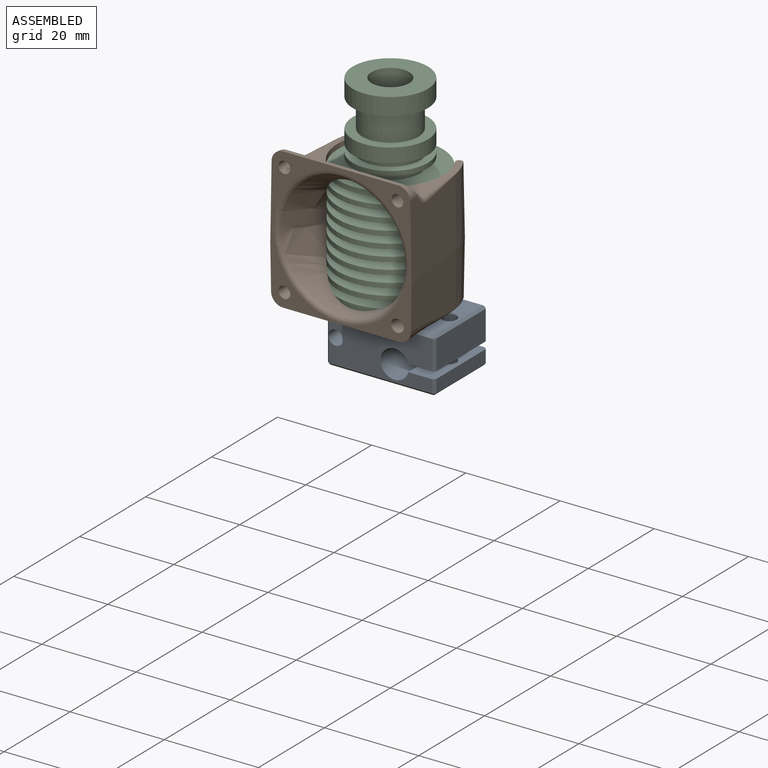
[diagram: assembled view]
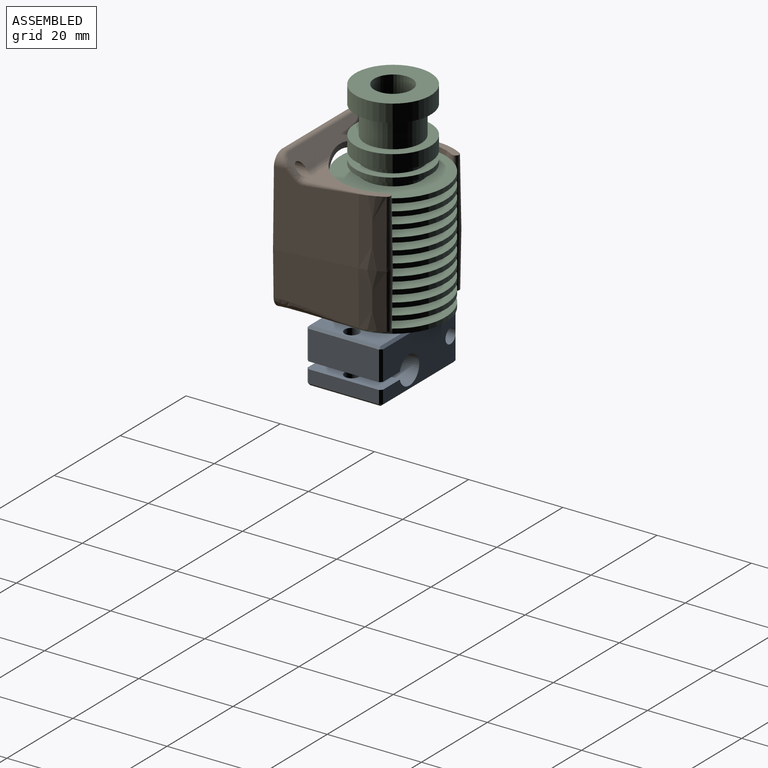
[diagram: assembled view, second angle]
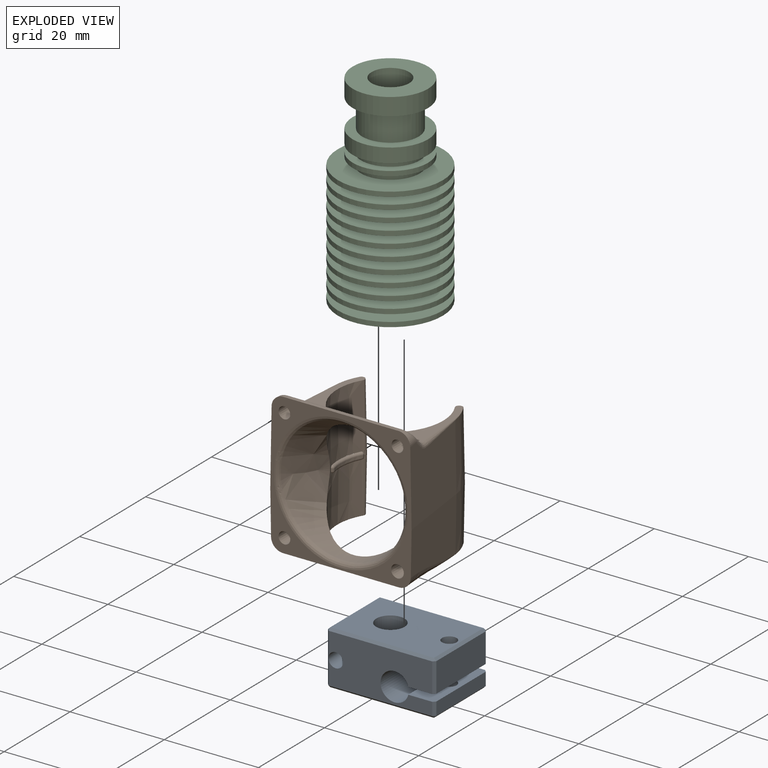
[diagram: exploded view]
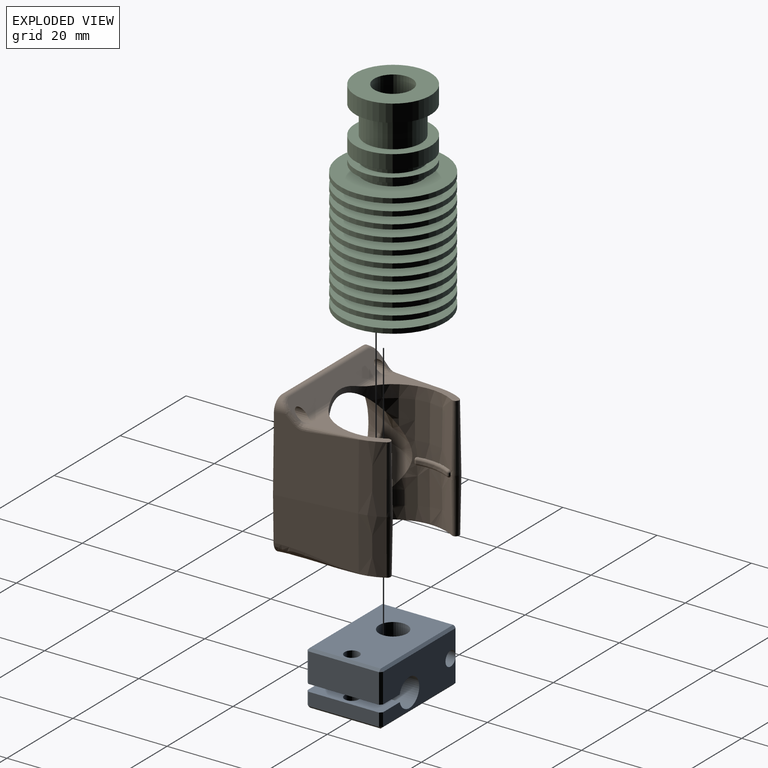
[diagram: exploded view, second angle]
ASSEMBLY  parts=3 mates=4
PART A: 37 faces, bbox 23x16x11.5 mm
  f0: plane 15x0.5mm, normal (-0.71,0,0.71), area 10.6mm2, adj f6,f8,f9,f10
  f1: plane 15.02x0.52mm, normal (0.71,0,0.71), area 10.6mm2, adj f5,f9,f11,f12,f13
  f2: plane 15x0.5mm, normal (0.71,0,-0.71), area 10.6mm2, adj f4,f13,f14,f18
  f3: cylinder r=3mm len=11.5mm, axis (0,0,1), area 216.8mm2, adj f9,f18
  f4: plane 0.5x0.5mm, normal (0.58,-0.58,-0.58), area 0.2mm2, adj f2,f19,f20
  f5: plane 0.5x0.5mm, normal (0.58,-0.58,0.58), area 0.2mm2, adj f1,f20,f21
  f6: plane 0.5x0.5mm, normal (-0.58,-0.58,0.58), area 0.2mm2, adj f0,f21,f22
  f7: cylinder r=1.55mm len=3.25mm, axis (0,0,1), area 31.7mm2, adj f9,f23
  f8: plane 15x2.75mm, normal (-1,0,0), area 41.2mm2, adj f0,f22,f23,f24
  f9: plane 22x15mm, normal (0,0,1), area 286.7mm2, adj f0,f1,f3,f7,f11,f21,f25
  f10: plane 0.5x0.5mm, normal (-0.58,0.58,0.58), area 0.2mm2, adj f0,f24,f25
  f11: cylinder r=1.55mm len=5.75mm, axis (0,0,1), area 46.4mm2, adj f1,f9,f26
  f12: plane 0.5x0.5mm, normal (0.58,0.58,0.58), area 0.2mm2, adj f1,f25,f27
  f13: plane 15x10.5mm, normal (1,0,0), area 157.5mm2, adj f1,f2,f20,f27
  f14: plane 0.5x0.5mm, normal (0.58,0.58,-0.58), area 0.2mm2, adj f2,f27,f28
  f15: plane 0.5x0.5mm, normal (-0.58,0.58,-0.58), area 0.2mm2, adj f16,f28,f29
  f16: plane 15x0.5mm, normal (-0.71,0,-0.71), area 10.6mm2, adj f15,f17,f18,f30
  f17: plane 0.5x0.5mm, normal (-0.58,-0.58,-0.58), area 0.2mm2, adj f16,f19,f31
  f18: plane 22x15mm, normal (0,0,-1), area 294.2mm2, adj f2,f3,f16,f19,f28,f32
  f19: plane 22x0.5mm, normal (0,-0.71,-0.71), area 15.6mm2, adj f4,f17,f18,f33
  f20: plane 10.52x0.52mm, normal (0.71,-0.71,0), area 7.4mm2, adj f4,f5,f13,f26,f33
  f21: plane 22x0.5mm, normal (0,-0.71,0.71), area 15.6mm2, adj f5,f6,f9,f33
  f22: plane 2.75x0.5mm, normal (-0.71,-0.71,0), area 1.9mm2, adj f6,f8,f23,f33
  f23: plane 16x5.6mm, normal (0,0,-1), area 81.7mm2, adj f7,f8,f22,f24,f33,f34,f36
  f24: plane 2.75x0.5mm, normal (-0.71,0.71,0), area 1.9mm2, adj f8,f10,f23,f34
  f25: plane 22x0.5mm, normal (0,0.71,0.71), area 15.6mm2, adj f9,f10,f12,f34
  f26: cylinder r=1.55mm len=16mm, axis (0,1,0), area 146.2mm2, adj f11,f20,f27,f33,f34
  f27: plane 10.52x0.52mm, normal (0.71,0.71,0), area 7.4mm2, adj f12,f13,f14,f26,f34
  f28: plane 22x0.5mm, normal (0,0.71,-0.71), area 15.6mm2, adj f14,f15,f18,f34
  f29: plane 6.25x0.5mm, normal (-0.71,0.71,0), area 4.4mm2, adj f15,f30,f34,f35
  f30: plane 15x6.25mm, normal (-1,0,0), area 93.7mm2, adj f16,f29,f31,f35
  f31: plane 6.25x0.5mm, normal (-0.71,-0.71,0), area 4.4mm2, adj f17,f30,f33,f35
  f32: cylinder r=1.55mm len=6.75mm, axis (0,0,1), area 65.7mm2, adj f18,f35
  f33: plane 22x10.5mm, normal (0,-1,0), area 187.7mm2, adj f19,f20,f21,f22,f23,f26,f31,f35
  f34: plane 22x10.5mm, normal (0,1,0), area 185.9mm2, adj f23,f24,f25,f26,f27,f28,f29,f35
  f35: plane 16x5.6mm, normal (0,0,1), area 81.7mm2, adj f29,f30,f31,f32,f33,f34,f36
  f36: cylinder r=3mm len=16mm, axis (0,1,0), area 277.3mm2, adj f23,f33,f34,f35
PART B: 92 faces, bbox 22.6x30.3x30.3 mm
  f0: plane 0.5x0.02mm, normal (-0.97,0.26,0), area 0mm2, adj f4,f58,f62,f73,f77
  f1: plane 0.5x0.01mm, normal (0.87,0.5,0), area 0mm2, adj f5,f28,f39,f64,f65
  f2: plane 2.5x2.5mm, normal (-1,0,0), area 4.9mm2, adj f8
  f3: plane 2.29x2.29mm, normal (-1,0,0), area 4.1mm2, adj f9
  f4: cylinder r=0.5mm len=0.59mm, axis (0,0,1), area 0.4mm2, adj f0,f18,f30,f36
  f5: cylinder r=0.5mm len=0.66mm, axis (0,0,1), area 0.4mm2, adj f1,f11,f18,f38
  f6: cylinder r=2.5mm len=2.76mm, axis (-0.99,-0.13,0), area 4.5mm2, adj f21,f23,f24,f50
  f7: plane 16.85x11.73mm, normal (0.13,-0.99,0.02), area 172mm2, adj f14,f20,f23,f24
  f8: cone r=0mm half-angle=1deg, axis (-1,0,0), area 49.1mm2, adj f2,f24
  f9: cone r=0mm half-angle=1deg, axis (-1,0,0), area 45.2mm2, adj f3,f24
  f10: cylinder r=2.5mm len=2.76mm, axis (0.99,-0.13,0), area 4.6mm2, adj f21,f24,f26,f46
  f11: sphere r=0.5mm, area 0.4mm2, adj f5,f28,f29
  f12: plane 16.83x11.76mm, normal (0.13,0.99,0.02), area 173mm2, adj f13,f24,f26,f31
  f13: bspline ~16.92x2.78mm, area 37.1mm2, adj f12,f16,f24,f33
  f14: bspline ~16.92x2.78mm, area 38.7mm2, adj f7,f15,f24,f33
  f15: bspline ~4.82x1.7mm, area 1.1mm2, adj f14,f19,f20,f33
  f16: bspline ~4.82x1.7mm, area 0.9mm2, adj f13,f31,f32,f33
  f17: bspline ~27.81x11.6mm, area 55.3mm2, adj f24,f34,f35,f61
  f18: cylinder r=10.5mm len=7.09mm, axis (0,0,1), area 3.6mm2, adj f4,f5,f29,f37
  f19: bspline ~1.54x1.3mm, area 0.4mm2, adj f15,f33,f39,f60
  f20: cone r=0mm half-angle=1deg, axis (0,0,-1), area 59.4mm2, adj f7,f15,f39,f40
  f21: plane 24.41x0.59mm, normal (0,0,-1), area 14.3mm2, adj f6,f10,f24,f45
  f22: bspline ~2.09x1.5mm, area 2.6mm2, adj f23,f41,f44,f49
  f23: plane 16.77x15.93mm, normal (0.13,-0.99,-0.02), area 236.8mm2, adj f6,f7,f22,f24,f40,f44,f49
  f24: plane 30.14x30.14mm, normal (-1,0,0), area 228.2mm2, adj f6,f7,f8,f9,f10,f12,f13,f14
  f25: bspline ~2.09x1.5mm, area 2.6mm2, adj f26,f47,f53,f54
  f26: plane 16.77x15.93mm, normal (0.13,0.99,-0.02), area 236.8mm2, adj f10,f12,f24,f25,f27,f47,f54
  f27: cone r=0mm half-angle=1deg, axis (0,0,1), area 72.5mm2, adj f26,f31,f55,f71
  f28: cylinder r=0.5mm len=0.5mm, axis (0.5,-0.87,0), area 0mm2, adj f1,f11,f56,f57
  f29: torus R=11mm, axis (0,0,1), area 5.8mm2, adj f11,f18,f30,f57
  f30: sphere r=0.5mm, area 0.4mm2, adj f4,f29,f58
  f31: cone r=0mm half-angle=1deg, axis (0,0,-1), area 59.6mm2, adj f12,f16,f27,f59
  f32: bspline ~1.54x1.3mm, area 0.4mm2, adj f16,f33,f59,f60
  f33: plane 25.34x21.87mm, normal (0,0,1), area 185.9mm2, adj f13,f14,f15,f16,f19,f24,f32,f60
  f34: bspline ~28.62x17.94mm, area 95.7mm2, adj f17,f24,f35,f61
  f35: bspline ~3.21x1.31mm, area 3.9mm2, adj f17,f24,f34,f61
  f36: sphere r=0.5mm, area 0.4mm2, adj f4,f37,f62
  f37: torus R=11mm, axis (0,0,1), area 5.8mm2, adj f18,f36,f38,f63
  f38: sphere r=0.5mm, area 0.4mm2, adj f5,f37,f64
  f39: cone r=0mm half-angle=1deg, axis (0,0,-1), area 32.9mm2, adj f1,f19,f20,f56,f65
  f40: cone r=0mm half-angle=1deg, axis (0,0,1), area 72.5mm2, adj f20,f23,f43,f65
  f41: cylinder r=2mm len=1.41mm, axis (0,1,0), area 0.6mm2, adj f22,f48,f66,f68
  f42: plane 1.12x0.15mm, normal (-1,0,0), area 0.1mm2, adj f48,f66
  f43: bspline ~4.84x1.64mm, area 0.6mm2, adj f40,f44,f66
  f44: bspline ~10.77x1.56mm, area 9.5mm2, adj f22,f23,f43,f66
  f45: cylinder r=1mm len=24.26mm, axis (0,1,0), area 19mm2, adj f21,f46,f50,f68
  f46: bspline ~2.47x2.35mm, area 3.6mm2, adj f10,f45,f47,f68
  f47: bspline ~2.32x2.23mm, area 3.4mm2, adj f25,f26,f46,f68
  f48: cone r=0mm half-angle=1deg, axis (-1,0,0), area 31.8mm2, adj f24,f41,f42,f66,f67,f68
  f49: bspline ~2.32x2.23mm, area 3.4mm2, adj f22,f23,f50,f68
  f50: bspline ~2.47x2.36mm, area 3.6mm2, adj f6,f45,f49,f68
  f51: cone r=0mm half-angle=1deg, axis (-1,0,0), area 31.8mm2, adj f24,f52,f53,f68,f69,f70
  f52: plane 1.12x0.15mm, normal (-1,0,0), area 0.1mm2, adj f51,f70
  f53: cylinder r=2mm len=1.41mm, axis (0,1,0), area 0.6mm2, adj f25,f51,f68,f70
  f54: bspline ~10.77x1.56mm, area 9.5mm2, adj f25,f26,f55,f70
  f55: bspline ~4.8x1.62mm, area 0.6mm2, adj f27,f54,f70
  f56: cone r=0mm half-angle=1deg, axis (0,0,1), area 63.5mm2, adj f28,f39,f57,f60,f73
  f57: plane 7.43x1.25mm, normal (0,0,1), area 0.1mm2, adj f28,f29,f56,f58,f73
  f58: cylinder r=0.5mm len=0.5mm, axis (-0.26,-0.97,0), area 0mm2, adj f0,f30,f57,f73
  f59: cone r=0mm half-angle=1deg, axis (0,0,-1), area 32.9mm2, adj f31,f32,f71,f73,f85
  f60: bspline ~23.08x17.12mm, area 7.3mm2, adj f19,f32,f33,f56,f73
  f61: bspline ~26.74x26.69mm, area 555.1mm2, adj f17,f34,f35,f73,f77
  f62: cylinder r=0.5mm len=0.5mm, axis (0.26,0.97,0), area 0mm2, adj f0,f36,f63,f77
  f63: plane 7.43x1.25mm, normal (0,0,-1), area 0.1mm2, adj f37,f62,f64,f77
  f64: cylinder r=0.5mm len=0.5mm, axis (-0.5,0.87,0), area 0mm2, adj f1,f38,f63,f77
  f65: cone r=0mm half-angle=1deg, axis (0,0,1), area 39.2mm2, adj f1,f39,f40,f66,f77
  f66: plane 15.99x6.67mm, normal (0,0,-1), area 36.8mm2, adj f41,f42,f43,f44,f48,f65,f67,f77
  f67: cylinder r=2mm len=7.6mm, axis (0,1,0), area 9.4mm2, adj f48,f66,f68,f77
  f68: plane 27.1x3.26mm, normal (0.71,0,-0.71), area 103.4mm2, adj f41,f45,f46,f47,f48,f49,f50,f51
  f69: cylinder r=2mm len=7.6mm, axis (0,1,0), area 9.4mm2, adj f51,f68,f70,f77
  f70: plane 16.19x6.87mm, normal (0,0,-1), area 36.7mm2, adj f51,f52,f53,f54,f55,f69,f71,f77
  f71: cone r=0mm half-angle=1deg, axis (0,0,1), area 39.2mm2, adj f27,f59,f70,f78,f85
  f72: cylinder r=0.5mm len=0.5mm, axis (0.5,0.87,0), area 0mm2, adj f73,f80,f85,f86
  f73: cone r=0mm half-angle=1deg, axis (0,0,1), area 260.4mm2, adj f0,f56,f57,f58,f59,f60,f61,f72
  f74: cylinder r=0.5mm len=0.5mm, axis (-0.26,0.97,0), area 0mm2, adj f73,f75,f80,f81
  f75: plane 0.5x0.02mm, normal (-0.97,-0.26,0), area 0mm2, adj f73,f74,f76,f77,f88
  f76: cylinder r=0.5mm len=0.5mm, axis (0.26,-0.97,0), area 0mm2, adj f75,f77,f82,f83
  f77: cone r=0mm half-angle=1deg, axis (0,0,-1), area 290.1mm2, adj f0,f61,f62,f63,f64,f65,f66,f67
  f78: cone r=0mm half-angle=1deg, axis (0,0,-1), area 78.8mm2, adj f70,f71,f77,f79,f83
  f79: cylinder r=0.5mm len=0.5mm, axis (-0.5,-0.87,0), area 0mm2, adj f78,f83,f84,f85
  f80: plane 7.43x1.25mm, normal (0,0,1), area 0.1mm2, adj f72,f73,f74,f87
  f81: sphere r=0.5mm, area 0.4mm2, adj f74,f87,f88
  f82: sphere r=0.5mm, area 0.4mm2, adj f76,f88,f89
  f83: plane 7.43x1.25mm, normal (0,0,-1), area 0.1mm2, adj f76,f77,f78,f79,f89
  f84: sphere r=0.5mm, area 0.4mm2, adj f79,f89,f91
  f85: plane 0.5x0.01mm, normal (0.87,-0.5,0), area 0mm2, adj f59,f71,f72,f79,f91
  f86: sphere r=0.5mm, area 0.4mm2, adj f72,f87,f91
  f87: torus R=11mm, axis (0,0,1), area 5.8mm2, adj f80,f81,f86,f90
  f88: cylinder r=0.5mm len=0.59mm, axis (0,0,1), area 0.4mm2, adj f75,f81,f82,f90
  f89: torus R=11mm, axis (0,0,1), area 5.8mm2, adj f82,f83,f84,f90
  f90: cylinder r=10.5mm len=7.09mm, axis (0,0,1), area 3.6mm2, adj f87,f88,f89,f91
  f91: cylinder r=0.5mm len=0.66mm, axis (0,0,1), area 0.4mm2, adj f84,f85,f86,f90
PART C: 60 faces, bbox 22.3x22.3x42.7 mm
  f0: cylinder r=11.15mm len=22.3mm, axis (0,0,-1), area 70.1mm2, adj f1,f2
  f1: plane 22.3x22.3mm, normal (0,0,-1), area 267.9mm2, adj f0,f3
  f2: plane 22.3x22.3mm, normal (0,0,1), area 267.9mm2, adj f0,f4
  f3: cylinder r=6.25mm len=12.5mm, axis (0,0,-1), area 58.9mm2, adj f1,f5
  f4: cylinder r=6.25mm len=12.5mm, axis (0,0,-1), area 58.9mm2, adj f2,f6
  f5: plane 22.3x22.3mm, normal (0,0,1), area 267.9mm2, adj f3,f7
  f6: plane 22.3x22.3mm, normal (0,0,-1), area 267.9mm2, adj f4,f8
  f7: cylinder r=11.15mm len=22.3mm, axis (0,0,-1), area 70.1mm2, adj f5,f9
  f8: cylinder r=11.15mm len=22.3mm, axis (0,0,-1), area 70.1mm2, adj f6,f10
  f9: plane 22.3x22.3mm, normal (0,0,-1), area 267.9mm2, adj f7,f11
  f10: plane 22.3x22.3mm, normal (0,0,1), area 267.9mm2, adj f8,f12
  f11: cylinder r=6.25mm len=12.5mm, axis (0,0,-1), area 58.9mm2, adj f9,f13
  f12: cylinder r=6.25mm len=12.5mm, axis (0,0,-1), area 58.9mm2, adj f10,f14
  f13: plane 22.3x22.3mm, normal (0,0,1), area 267.9mm2, adj f11,f15
  f14: plane 22.3x22.3mm, normal (0,0,-1), area 267.9mm2, adj f12,f16
  f15: cylinder r=11.15mm len=22.3mm, axis (0,0,-1), area 70.1mm2, adj f13,f17
  f16: cylinder r=11.15mm len=22.3mm, axis (0,0,-1), area 70.1mm2, adj f14,f18
  f17: plane 22.3x22.3mm, normal (0,0,-1), area 267.9mm2, adj f15,f19
  f18: plane 22.3x22.3mm, normal (0,0,1), area 267.9mm2, adj f16,f20
  f19: cylinder r=6.25mm len=12.5mm, axis (0,0,-1), area 58.9mm2, adj f17,f21
  f20: cylinder r=6.25mm len=12.5mm, axis (0,0,-1), area 58.9mm2, adj f18,f22
  f21: plane 22.3x22.3mm, normal (0,0,1), area 267.9mm2, adj f19,f23
  f22: plane 22.3x22.3mm, normal (0,0,-1), area 267.9mm2, adj f20,f24
  f23: cylinder r=11.15mm len=22.3mm, axis (0,0,-1), area 70.1mm2, adj f21,f25
  f24: cylinder r=11.15mm len=22.3mm, axis (0,0,-1), area 70.1mm2, adj f22,f26
  f25: plane 22.3x22.3mm, normal (0,0,-1), area 267.9mm2, adj f23,f27
  f26: plane 22.3x22.3mm, normal (0,0,1), area 267.9mm2, adj f24,f28
  f27: cylinder r=6.25mm len=12.5mm, axis (0,0,-1), area 58.9mm2, adj f25,f29
  f28: cylinder r=6.25mm len=12.5mm, axis (0,0,-1), area 58.9mm2, adj f26,f30
  f29: plane 22.3x22.3mm, normal (0,0,1), area 267.9mm2, adj f27,f31
  f30: plane 22.3x22.3mm, normal (0,0,-1), area 267.9mm2, adj f28,f32
  f31: cylinder r=11.15mm len=22.3mm, axis (0,0,-1), area 70.1mm2, adj f29,f33
  f32: cylinder r=11.15mm len=22.3mm, axis (0,0,-1), area 70.1mm2, adj f30,f34
  f33: plane 22.3x22.3mm, normal (0,0,-1), area 267.9mm2, adj f31,f35
  f34: plane 22.3x22.3mm, normal (0,0,1), area 362.3mm2, adj f32,f36
  f35: cylinder r=6.25mm len=12.5mm, axis (0,0,-1), area 58.9mm2, adj f33,f37
  f36: cylinder r=3mm len=14.8mm, axis (0,0,1), area 279mm2, adj f34,f38
  f37: plane 22.3x22.3mm, normal (0,0,1), area 267.9mm2, adj f35,f39
  f38: cone r=0mm half-angle=59deg, axis (0,0,1), area 16.8mm2, adj f36,f40
  f39: cylinder r=11.15mm len=22.3mm, axis (0,0,-1), area 70.1mm2, adj f37,f41
  f40: cylinder r=2.1mm len=19.72mm, axis (0,0,1), area 260.2mm2, adj f38,f42
  f41: plane 22.3x22.3mm, normal (0,0,-1), area 267.9mm2, adj f39,f43
  f42: cone r=0mm half-angle=59deg, axis (0,0,-1), area 42.5mm2, adj f40,f44
  f43: cylinder r=6.25mm len=12.5mm, axis (0,0,-1), area 58.9mm2, adj f41,f45
  f44: cylinder r=4mm len=8mm, axis (0,0,-1), area 163.4mm2, adj f42,f46
  f45: plane 22.3x22.3mm, normal (0,0,1), area 267.9mm2, adj f43,f47
  f46: plane 16x16mm, normal (0,0,-1), area 150.8mm2, adj f44,f48
  f47: cylinder r=11.15mm len=22.3mm, axis (0,0,-1), area 70.1mm2, adj f45,f49
  f48: cylinder r=8mm len=16mm, axis (0,0,1), area 186mm2, adj f46,f50
  f49: plane 22.3x22.3mm, normal (0,0,-1), area 267.9mm2, adj f47,f51
  f50: plane 16x16mm, normal (0,0,1), area 88mm2, adj f48,f52
  f51: cylinder r=6.25mm len=12.5mm, axis (0,0,-1), area 58.9mm2, adj f49,f53
  f52: cylinder r=6mm len=12mm, axis (0,0,1), area 226.2mm2, adj f50,f54
  f53: plane 16x16mm, normal (0,0,1), area 78.3mm2, adj f51,f55
  f54: plane 16x16mm, normal (0,0,-1), area 88mm2, adj f52,f56
  f55: cylinder r=8mm len=16mm, axis (0,0,1), area 50.3mm2, adj f53,f57
  f56: cylinder r=8mm len=16mm, axis (0,0,1), area 150.8mm2, adj f54,f58
  f57: plane 16x16mm, normal (0,0,-1), area 78.3mm2, adj f55,f59
  f58: plane 16x16mm, normal (0,0,1), area 78.3mm2, adj f56,f59
  f59: cylinder r=6.25mm len=12.5mm, axis (0,0,-1), area 58.9mm2, adj f57,f58
PLACE A rot(axis=(0,1,0),180deg) t=(0,0,-39.6)mm
PLACE B rot(axis=(0.71,0.71,0),180deg) t=(0,0,-41.7)mm
PLACE C rot(axis=(1,0,0),180deg) t=(0,0,-42.7)mm
MATE cylindrical B.f18 <-> C.f0  axis (0,0,1) through (0,0,-22.74)mm
MATE planar B.f33 <-> C.f0  axis (0,0,-1) through (-12.32,-15,-41.7)mm
MATE planar A.f7 <-> C.f0  axis (0,0,1) through (12.5,0,-42.7)mm
MATE cylindrical A.f3 <-> C.f0  axis (0,0,1) through (0,0,-42.7)mm
